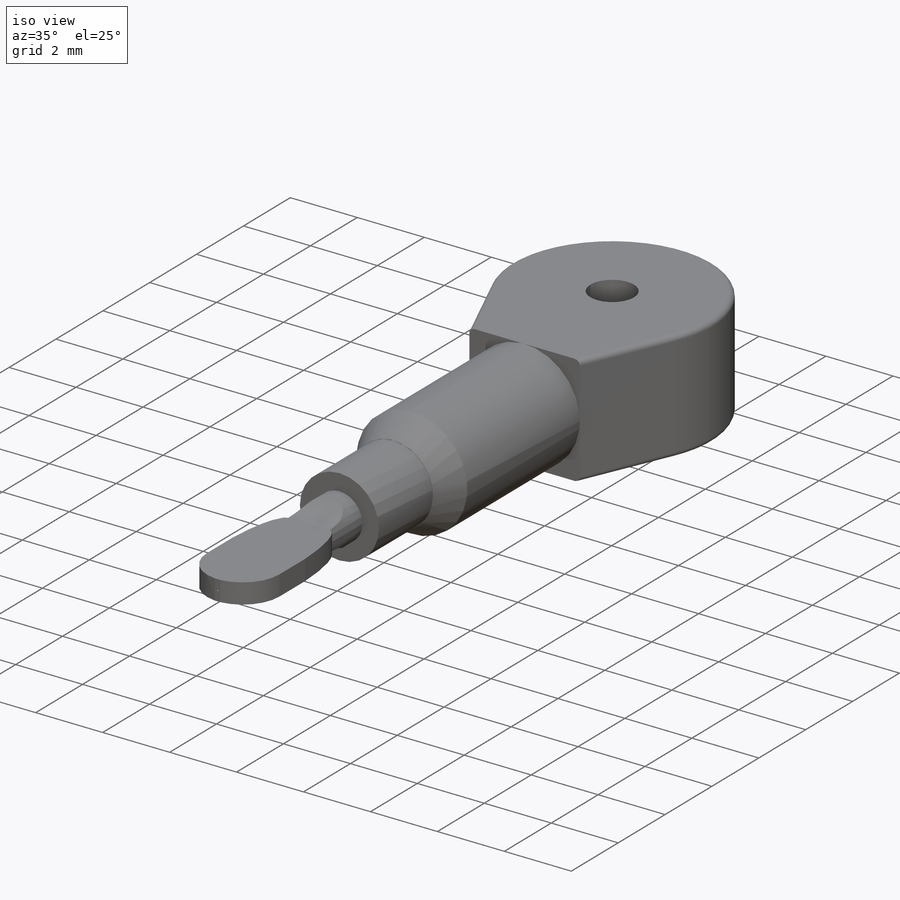
[diagram: iso view]
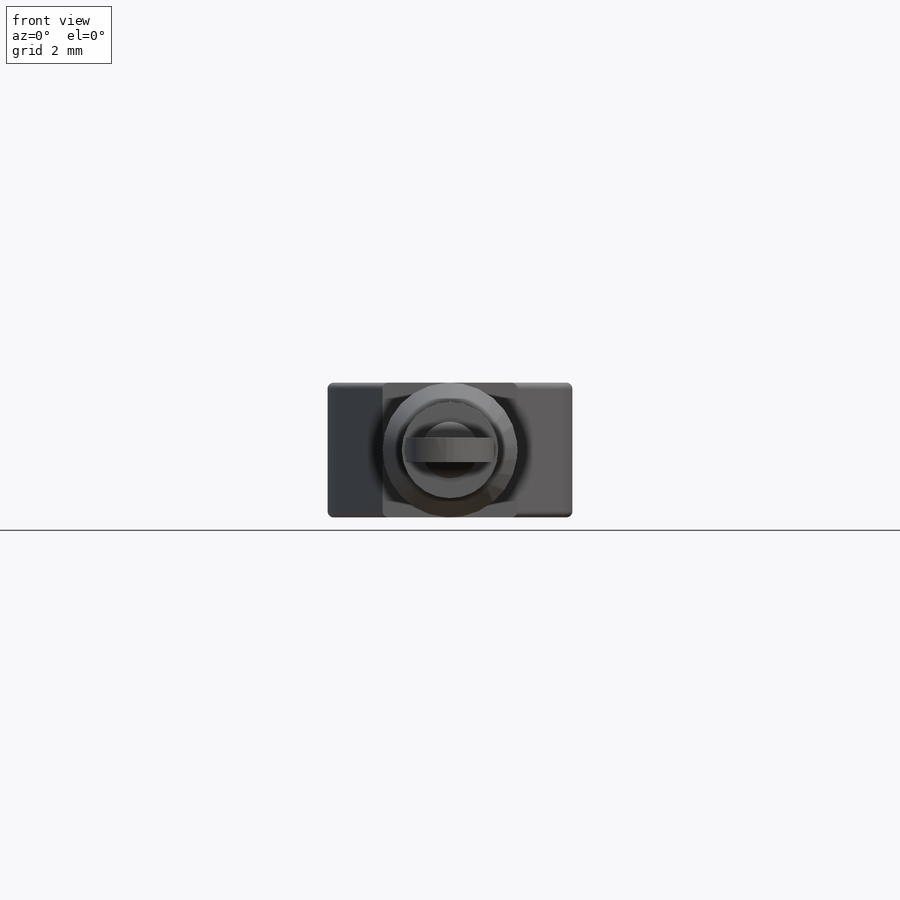
[diagram: front view]
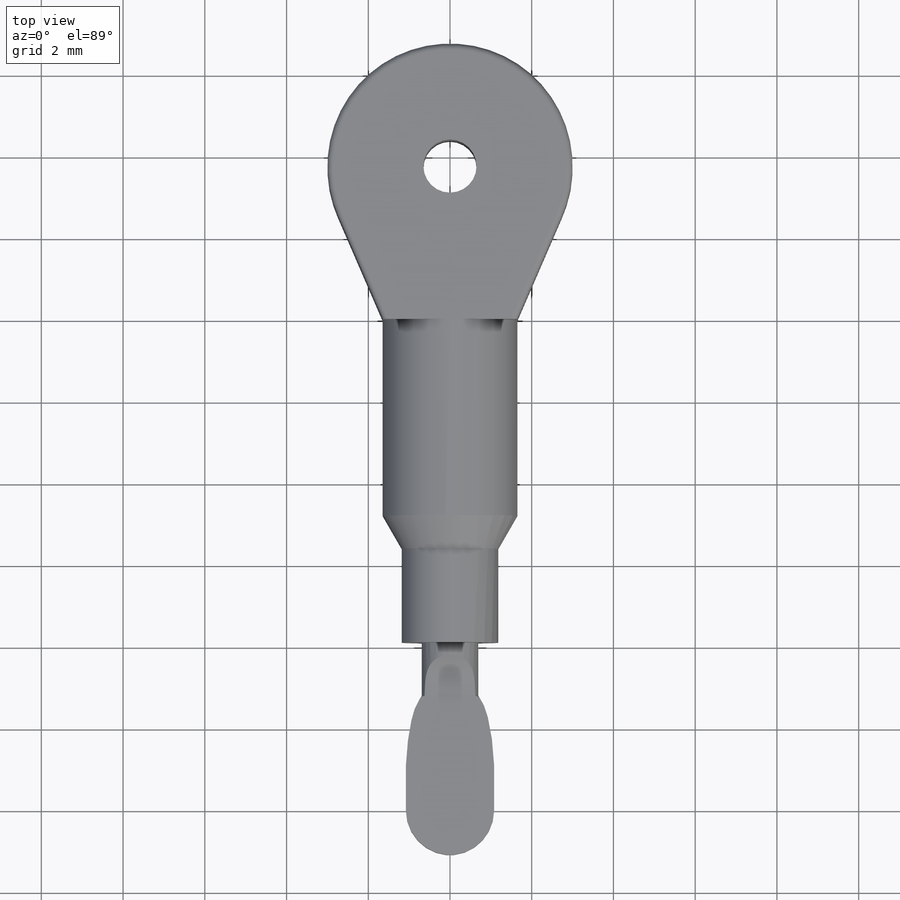
[diagram: top view]
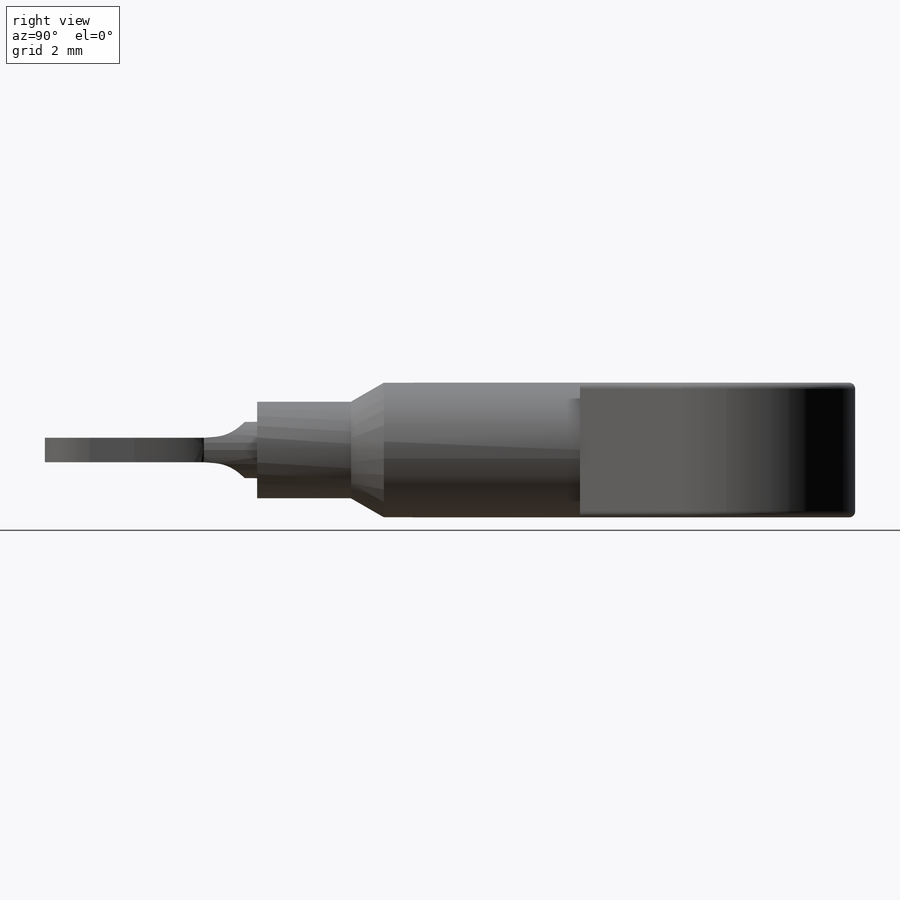
[diagram: right view]
SOLIDWORKS PART (.sldprt)
format: sldprt  version: not decoded by parser v0  size: 361,472 bytes
history: native  units: mm
features: sketch x10, extrude x5, cut_extrude x5, fillet x3, material x1, chamfer x1 (+16 scaffold rows collapsed)
feature tree (41):
  scaffold x16  (default folders/planes/origin — collapsed)
  material  "Material <not specified>"
  sketch  "Sketch1"  dims[D1=3.3mm]
  extrude  "Extrude1"  Depth=5.6mm
  sketch  "Sketch2"  dims[D1=2.36mm]
  extrude  "Extrude2"  Depth=2.3mm
  chamfer  "Chamfer1"  Distance=0.8mm Angle=30deg
  sketch  "Sketch3"  dims[D1=1.38mm]
  extrude  "Extrude3"  Depth=1.3mm
  sketch  "Sketch4"  dims[D1=2.16mm D2=0.6mm D3=1.08mm D4=0.3mm]
  extrude  "Extrude4"  Depth=3.9mm
  fillet  "Fillet1"  Radius=1.1mm
  sketch  "Sketch5"
  cut_extrude  "Extrude5"  [1 undecoded]
  sketch  "Sketch6"  dims[D1=1.0mm]
  cut_extrude  "Extrude6"  [1 undecoded]
  fillet  "Fillet2"  Radius=0.15mm
  sketch  "Sketch7"  dims[D1=3.0mm D2=3.0mm]
  extrude  "Extrude7"  Depth=8mm
  sketch  "Sketch8"  dims[D1=3.74mm]
  cut_extrude  "Extrude8"  [1 undecoded]
  fillet  "Fillet3"  Radius=0.15mm
  sketch  "Sketch9"  dims[D1=0.005mm]
  cut_extrude  "Extrude9"  [1 undecoded]
  sketch  "Sketch10"  dims[c1.D2=~0.07615mm c1.D3=~0.07615mm c1.D4=0.05mm c1.D1=0.085mm c2.D2=0.3mm c2.D3=0.3mm]
  cut_extrude  "Extrude10"  Depth=0.8mm
decode coverage: 19 of 24 modeling features carry decoded parameters
note: ~ marks probable driven/reference dimensions
note: 4 parameter values undecoded
summary: no parameter record found for 4 features
note: suppression state not decoded; provenance and decode notes live in map.json
